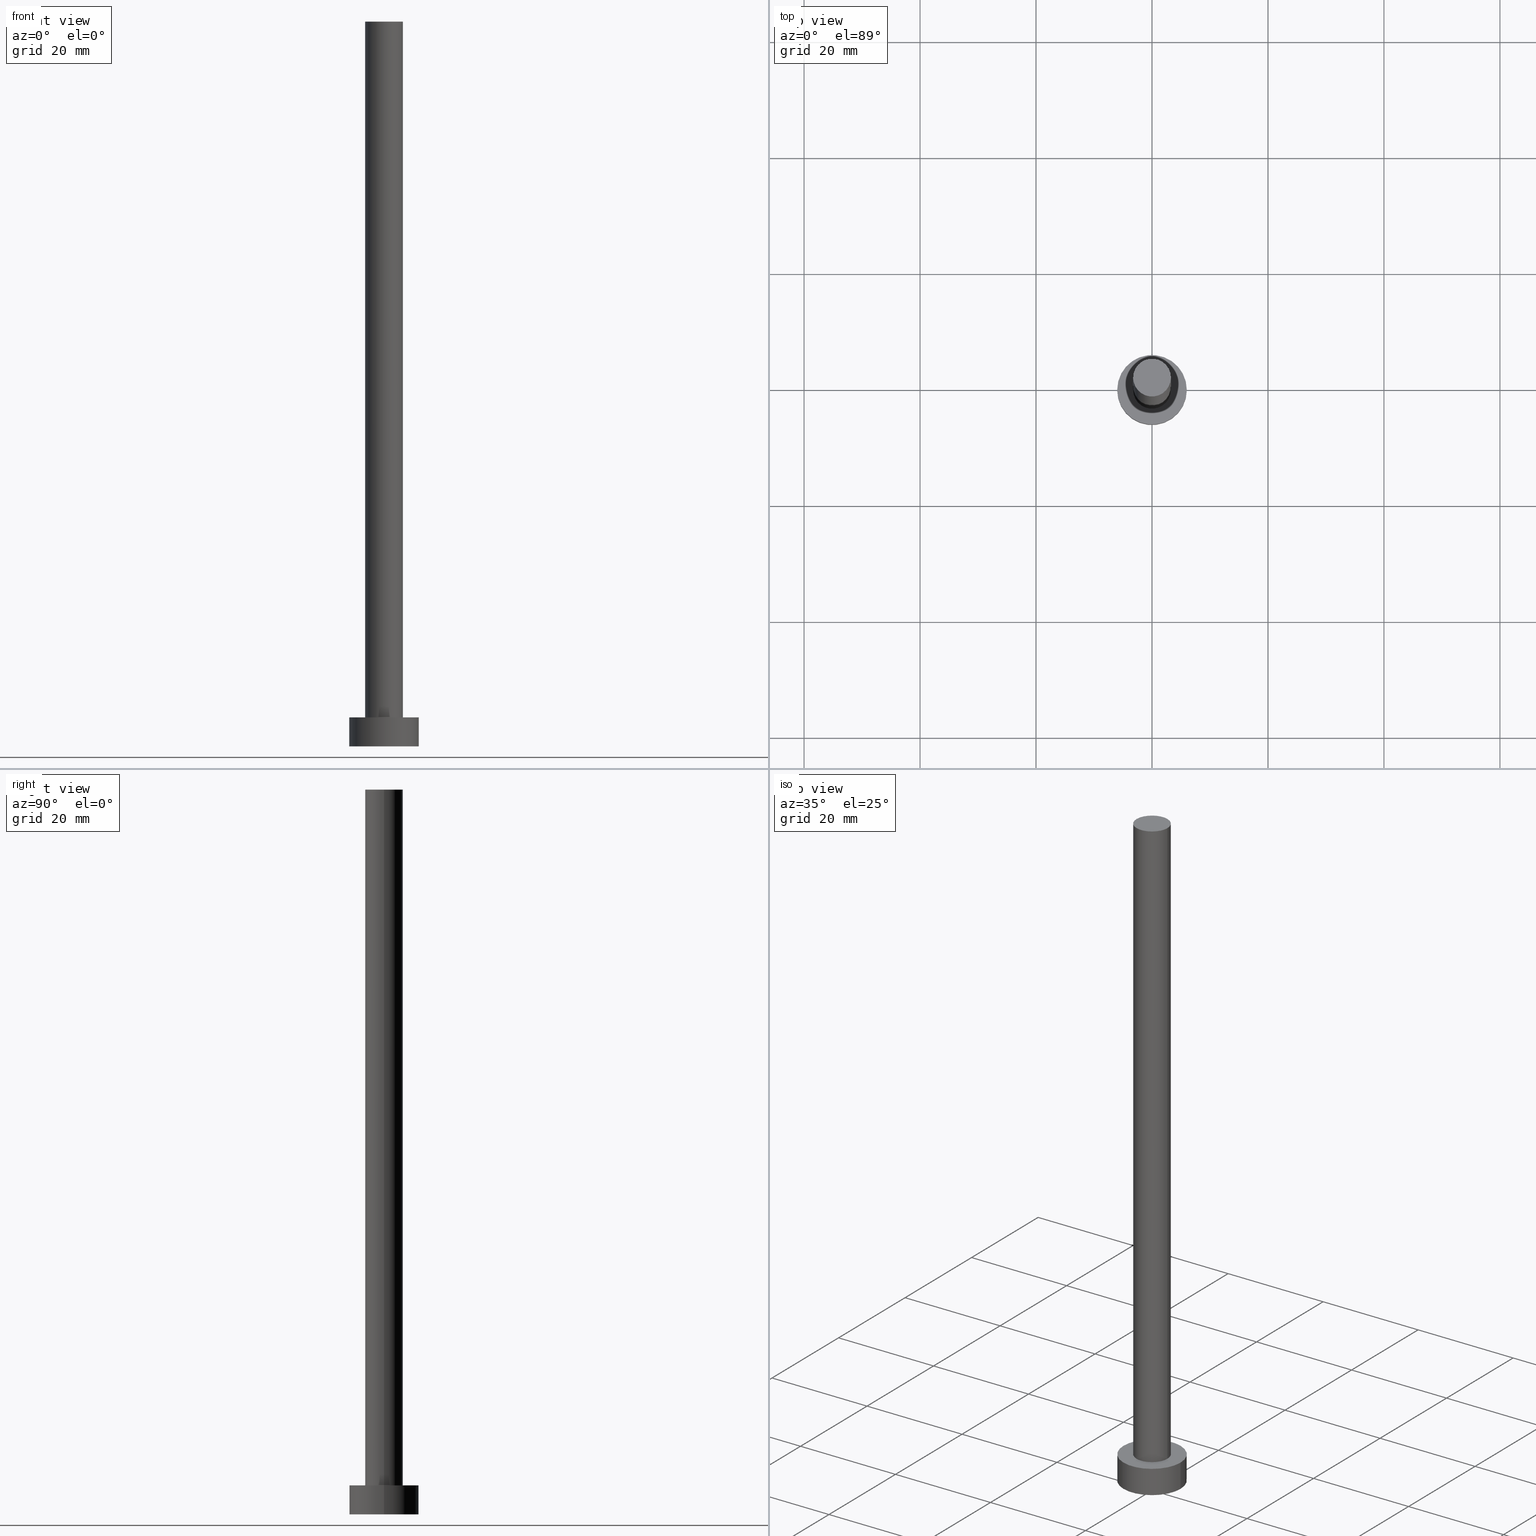
[diagram: canonical four-view strip — front | top / right | iso, engineering-drawing reading convention]
A machine part, canonical four-view strip (front | top / right | iso — engineering-drawing reading convention). The complete STEP part file that produces these views, byte-faithful:
ISO-10303-21;
HEADER;
FILE_DESCRIPTION (( 'STEP AP203' ),
    '1' );
FILE_NAME ('d3a0.STEP',
    '2023-02-13T15:17:46',
    ( '' ),
    ( '' ),
    'SwSTEP 2.0',
    'SolidWorks 2019',
    '' );
FILE_SCHEMA (( 'CONFIG_CONTROL_DESIGN' ));
ENDSEC;

DATA;
#1 = VECTOR ( 'NONE', #198, 1000.000000000000000 ) ;
#2 =( LENGTH_UNIT ( ) NAMED_UNIT ( * ) SI_UNIT ( .MILLI., .METRE. ) );
#3 = DIRECTION ( 'NONE',  ( -1.000000000000000000, 0.000000000000000000, 0.000000000000000000 ) ) ;
#4 = DIRECTION ( 'NONE',  ( -0.000000000000000000, -0.000000000000000000, -1.000000000000000000 ) ) ;
#5 = CARTESIAN_POINT ( 'NONE',  ( 0.000000000000000000, 0.000000000000000000, 5.000000000000000000 ) ) ;
#6 = EDGE_LOOP ( 'NONE', ( #8, #125, #149, #90 ) ) ;
#7 = APPROVAL_DATE_TIME ( #184, #88 ) ;
#8 = ORIENTED_EDGE ( 'NONE', *, *, #59, .F. ) ;
#9 = CARTESIAN_POINT ( 'NONE',  ( 0.000000000000000000, 0.000000000000000000, 5.000000000000000000 ) ) ;
#10 = ORIENTED_EDGE ( 'NONE', *, *, #173, .T. ) ;
#11 = ORIENTED_EDGE ( 'NONE', *, *, #173, .F. ) ;
#12 = AXIS2_PLACEMENT_3D ( 'NONE', #74, #255, #233 ) ;
#13 = EDGE_CURVE ( 'NONE', #145, #68, #168, .T. ) ;
#14 = LOCAL_TIME ( 16, 17, 46.00000000000000000, #171 ) ;
#15 = EDGE_CURVE ( 'NONE', #145, #221, #131, .T. ) ;
#16 = PERSON_AND_ORGANIZATION ( #89, #252 ) ;
#17 = SHAPE_DEFINITION_REPRESENTATION ( #42, #76 ) ;
#18 = DIRECTION ( 'NONE',  ( 1.000000000000000000, 0.000000000000000000, 0.000000000000000000 ) ) ;
#19 = DESIGN_CONTEXT ( 'detailed design', #27, 'design' ) ;
#20 = CC_DESIGN_PERSON_AND_ORGANIZATION_ASSIGNMENT ( #93, #212, ( #152 ) ) ;
#21 = CC_DESIGN_PERSON_AND_ORGANIZATION_ASSIGNMENT ( #49, #66, ( #120 ) ) ;
#22 = AXIS2_PLACEMENT_3D ( 'NONE', #115, #197, #54 ) ;
#23 = CYLINDRICAL_SURFACE ( 'NONE', #105, 6.000000000000000888 ) ;
#24 = CC_DESIGN_SECURITY_CLASSIFICATION ( #139, ( #136 ) ) ;
#25 = ORIENTED_EDGE ( 'NONE', *, *, #191, .F. ) ;
#26 = APPROVAL_PERSON_ORGANIZATION ( #16, #114, #181 ) ;
#27 = APPLICATION_CONTEXT ( 'configuration controlled 3d designs of mechanical parts and assemblies' ) ;
#28 = ORIENTED_EDGE ( 'NONE', *, *, #15, .F. ) ;
#29 = EDGE_LOOP ( 'NONE', ( #165, #151, #132, #185 ) ) ;
#30 = CARTESIAN_POINT ( 'NONE',  ( 0.000000000000000000, 0.000000000000000000, 0.000000000000000000 ) ) ;
#31 = PERSON_AND_ORGANIZATION ( #89, #252 ) ;
#32 = FACE_OUTER_BOUND ( 'NONE', #160, .T. ) ;
#33 = APPROVAL ( #230, 'NEUR�EN�' ) ;
#34 = MANIFOLD_SOLID_BREP ( 'P�idat vysunut�m3', #179 ) ;
#35 = EDGE_LOOP ( 'NONE', ( #63, #81 ) ) ;
#36 = CARTESIAN_POINT ( 'NONE',  ( -3.250000000000000444, 0.000000000000000000, 125.0000000000000000 ) ) ;
#37 = FACE_OUTER_BOUND ( 'NONE', #50, .T. ) ;
#38 = DIRECTION ( 'NONE',  ( 0.000000000000000000, 0.000000000000000000, 1.000000000000000000 ) ) ;
#39 = CC_DESIGN_PERSON_AND_ORGANIZATION_ASSIGNMENT ( #108, #164, ( #136 ) ) ;
#40 = DIRECTION ( 'NONE',  ( -0.000000000000000000, -0.000000000000000000, -1.000000000000000000 ) ) ;
#41 = APPROVAL_PERSON_ORGANIZATION ( #204, #33, #97 ) ;
#42 = PRODUCT_DEFINITION_SHAPE ( 'NONE', 'NONE',  #120 ) ;
#43 = ADVANCED_FACE ( 'NONE', ( #127, #32 ), #226, .T. ) ;
#44 = FACE_OUTER_BOUND ( 'NONE', #6, .T. ) ;
#45 = CARTESIAN_POINT ( 'NONE',  ( 0.000000000000000000, 0.000000000000000000, 125.0000000000000000 ) ) ;
#46 = CARTESIAN_POINT ( 'NONE',  ( 3.250000000000000444, 3.980102097228898231E-16, 125.0000000000000000 ) ) ;
#47 =( NAMED_UNIT ( * ) PLANE_ANGLE_UNIT ( ) SI_UNIT ( $, .RADIAN. ) );
#48 = CALENDAR_DATE ( 2023, 13, 2 ) ;
#49 = PERSON_AND_ORGANIZATION ( #89, #252 ) ;
#50 = EDGE_LOOP ( 'NONE', ( #104, #85 ) ) ;
#51 = ORIENTED_EDGE ( 'NONE', *, *, #178, .F. ) ;
#52 = MECHANICAL_CONTEXT ( 'NONE', #183, 'mechanical' ) ;
#53 = FACE_OUTER_BOUND ( 'NONE', #29, .T. ) ;
#54 = DIRECTION ( 'NONE',  ( -1.000000000000000000, 0.000000000000000000, 0.000000000000000000 ) ) ;
#55 = VECTOR ( 'NONE', #113, 1000.000000000000000 ) ;
#56 = CARTESIAN_POINT ( 'NONE',  ( -3.250000000000000444, 0.000000000000000000, 125.0000000000000000 ) ) ;
#57 = DIRECTION ( 'NONE',  ( 1.000000000000000000, 0.000000000000000000, 0.000000000000000000 ) ) ;
#58 = AXIS2_PLACEMENT_3D ( 'NONE', #253, #61, #237 ) ;
#59 = EDGE_CURVE ( 'NONE', #228, #241, #71, .T. ) ;
#60 = CYLINDRICAL_SURFACE ( 'NONE', #22, 3.250000000000000444 ) ;
#61 = DIRECTION ( 'NONE',  ( 0.000000000000000000, 0.000000000000000000, 1.000000000000000000 ) ) ;
#62 = ADVANCED_FACE ( 'NONE', ( #229 ), #60, .T. ) ;
#63 = ORIENTED_EDGE ( 'NONE', *, *, #191, .T. ) ;
#64 = CARTESIAN_POINT ( 'NONE',  ( 0.000000000000000000, 0.000000000000000000, 5.000000000000000000 ) ) ;
#65 = AXIS2_PLACEMENT_3D ( 'NONE', #95, #155, #222 ) ;
#66 = PERSON_AND_ORGANIZATION_ROLE ( 'creator' ) ;
#67 = VERTEX_POINT ( 'NONE', #193 ) ;
#68 = VERTEX_POINT ( 'NONE', #36 ) ;
#69 = ORIENTED_EDGE ( 'NONE', *, *, #59, .T. ) ;
#70 = ADVANCED_FACE ( 'NONE', ( #37 ), #78, .F. ) ;
#71 = CIRCLE ( 'NONE', #243, 6.000000000000000888 ) ;
#72 = ORIENTED_EDGE ( 'NONE', *, *, #15, .T. ) ;
#73 = ORIENTED_EDGE ( 'NONE', *, *, #157, .T. ) ;
#74 = CARTESIAN_POINT ( 'NONE',  ( 0.000000000000000000, 0.000000000000000000, 5.000000000000000000 ) ) ;
#75 = LINE ( 'NONE', #231, #55 ) ;
#76 = ADVANCED_BREP_SHAPE_REPRESENTATION ( 'd3a0', ( #34, #215 ), #244 ) ;
#77 = DIRECTION ( 'NONE',  ( 0.000000000000000000, 0.000000000000000000, 1.000000000000000000 ) ) ;
#78 = PLANE ( 'NONE',  #133 ) ;
#79 = CC_DESIGN_PERSON_AND_ORGANIZATION_ASSIGNMENT ( #84, #130, ( #136 ) ) ;
#80 = AXIS2_PLACEMENT_3D ( 'NONE', #112, #38, #18 ) ;
#81 = ORIENTED_EDGE ( 'NONE', *, *, #13, .T. ) ;
#82 = DIRECTION ( 'NONE',  ( -1.000000000000000000, 0.000000000000000000, 0.000000000000000000 ) ) ;
#83 = EDGE_CURVE ( 'NONE', #228, #148, #75, .T. ) ;
#84 = PERSON_AND_ORGANIZATION ( #89, #252 ) ;
#85 = ORIENTED_EDGE ( 'NONE', *, *, #239, .F. ) ;
#86 = APPROVAL_PERSON_ORGANIZATION ( #187, #88, #182 ) ;
#87 = DIRECTION ( 'NONE',  ( 0.000000000000000000, 0.000000000000000000, 1.000000000000000000 ) ) ;
#88 = APPROVAL ( #189, 'NEUR�EN�' ) ;
#89 = PERSON ( 'NEUR�EN�', 'NEUR�EN�', 'NEUR�EN�', ('NEUR�EN�'), ('NEUR�EN�'), ('NEUR�EN�') ) ;
#90 = ORIENTED_EDGE ( 'NONE', *, *, #207, .F. ) ;
#91 = CC_DESIGN_APPROVAL ( #88, ( #136 ) ) ;
#92 = DIRECTION ( 'NONE',  ( 0.000000000000000000, 0.000000000000000000, 1.000000000000000000 ) ) ;
#93 = PERSON_AND_ORGANIZATION ( #89, #252 ) ;
#94 = DATE_AND_TIME ( #110, #14 ) ;
#95 = CARTESIAN_POINT ( 'NONE',  ( 0.000000000000000000, 0.000000000000000000, 0.000000000000000000 ) ) ;
#96 = FACE_OUTER_BOUND ( 'NONE', #35, .T. ) ;
#97 = APPROVAL_ROLE ( '' ) ;
#98 = CARTESIAN_POINT ( 'NONE',  ( 0.000000000000000000, 0.000000000000000000, 125.0000000000000000 ) ) ;
#99 = DIRECTION ( 'NONE',  ( 0.000000000000000000, 0.000000000000000000, 1.000000000000000000 ) ) ;
#100 = AXIS2_PLACEMENT_3D ( 'NONE', #118, #99, #219 ) ;
#101 = CARTESIAN_POINT ( 'NONE',  ( 3.250000000000000444, 3.980102097228898231E-16, 125.0000000000000000 ) ) ;
#102 = ADVANCED_FACE ( 'NONE', ( #96 ), #169, .T. ) ;
#103 = CIRCLE ( 'NONE', #250, 6.000000000000000888 ) ;
#104 = ORIENTED_EDGE ( 'NONE', *, *, #224, .F. ) ;
#105 = AXIS2_PLACEMENT_3D ( 'NONE', #5, #4, #82 ) ;
#106 = DIRECTION ( 'NONE',  ( 0.000000000000000000, 0.000000000000000000, 1.000000000000000000 ) ) ;
#107 = LOCAL_TIME ( 16, 17, 46.00000000000000000, #126 ) ;
#108 = PERSON_AND_ORGANIZATION ( #89, #252 ) ;
#109 = ORIENTED_EDGE ( 'NONE', *, *, #166, .T. ) ;
#110 = CALENDAR_DATE ( 2023, 13, 2 ) ;
#111 = AXIS2_PLACEMENT_3D ( 'NONE', #98, #77, #57 ) ;
#112 = CARTESIAN_POINT ( 'NONE',  ( 0.000000000000000000, 0.000000000000000000, 5.000000000000000000 ) ) ;
#113 = DIRECTION ( 'NONE',  ( -0.000000000000000000, -0.000000000000000000, -1.000000000000000000 ) ) ;
#114 = APPROVAL ( #141, 'NEUR�EN�' ) ;
#115 = CARTESIAN_POINT ( 'NONE',  ( 0.000000000000000000, 0.000000000000000000, 125.0000000000000000 ) ) ;
#116 = CARTESIAN_POINT ( 'NONE',  ( -3.250000000000000444, 0.000000000000000000, 5.000000000000000000 ) ) ;
#117 = CARTESIAN_POINT ( 'NONE',  ( 0.000000000000000000, 0.000000000000000000, 0.000000000000000000 ) ) ;
#118 = CARTESIAN_POINT ( 'NONE',  ( 0.000000000000000000, 0.000000000000000000, 0.000000000000000000 ) ) ;
#119 = DIRECTION ( 'NONE',  ( 0.000000000000000000, 0.000000000000000000, 1.000000000000000000 ) ) ;
#120 = PRODUCT_DEFINITION ( 'NEZN�M�', '', #136, #19 ) ;
#121 = AXIS2_PLACEMENT_3D ( 'NONE', #177, #119, #201 ) ;
#122 = CALENDAR_DATE ( 2023, 13, 2 ) ;
#123 = UNCERTAINTY_MEASURE_WITH_UNIT (LENGTH_MEASURE( 1.000000000000000082E-05 ), #2, 'distance_accuracy_value', 'NONE');
#124 = SECURITY_CLASSIFICATION_LEVEL ( 'unclassified' ) ;
#125 = ORIENTED_EDGE ( 'NONE', *, *, #83, .T. ) ;
#126 = COORDINATED_UNIVERSAL_TIME_OFFSET ( 1, 0, .AHEAD. ) ;
#127 = FACE_BOUND ( 'NONE', #167, .T. ) ;
#128 = CALENDAR_DATE ( 2023, 13, 2 ) ;
#129 =( NAMED_UNIT ( * ) SI_UNIT ( $, .STERADIAN. ) SOLID_ANGLE_UNIT ( ) );
#130 = PERSON_AND_ORGANIZATION_ROLE ( 'creator' ) ;
#131 = LINE ( 'NONE', #46, #138 ) ;
#132 = ORIENTED_EDGE ( 'NONE', *, *, #207, .T. ) ;
#133 = AXIS2_PLACEMENT_3D ( 'NONE', #117, #92, #154 ) ;
#134 = CYLINDRICAL_SURFACE ( 'NONE', #12, 6.000000000000000888 ) ;
#135 = CIRCLE ( 'NONE', #121, 3.250000000000000444 ) ;
#136 = PRODUCT_DEFINITION_FORMATION_WITH_SPECIFIED_SOURCE ( 'LIBOVOLN�', '', #152, .NOT_KNOWN. ) ;
#137 = ADVANCED_FACE ( 'NONE', ( #44 ), #23, .T. ) ;
#138 = VECTOR ( 'NONE', #208, 1000.000000000000000 ) ;
#139 = SECURITY_CLASSIFICATION ( '', '', #124 ) ;
#140 = FACE_OUTER_BOUND ( 'NONE', #180, .T. ) ;
#141 = APPROVAL_STATUS ( 'not_yet_approved' ) ;
#142 = ORIENTED_EDGE ( 'NONE', *, *, #13, .F. ) ;
#143 = CARTESIAN_POINT ( 'NONE',  ( 6.000000000000000888, 7.347880794884120722E-16, 5.000000000000000000 ) ) ;
#144 = DATE_AND_TIME ( #242, #232 ) ;
#145 = VERTEX_POINT ( 'NONE', #101 ) ;
#146 = DIRECTION ( 'NONE',  ( 0.000000000000000000, 0.000000000000000000, 1.000000000000000000 ) ) ;
#147 = ADVANCED_FACE ( 'NONE', ( #140 ), #214, .T. ) ;
#148 = VERTEX_POINT ( 'NONE', #158 ) ;
#149 = ORIENTED_EDGE ( 'NONE', *, *, #239, .T. ) ;
#150 = LOCAL_TIME ( 16, 17, 46.00000000000000000, #225 ) ;
#151 = ORIENTED_EDGE ( 'NONE', *, *, #157, .F. ) ;
#152 = PRODUCT ( 'd3a0', 'd3a0', '', ( #52 ) ) ;
#153 = LINE ( 'NONE', #56, #156 ) ;
#154 = DIRECTION ( 'NONE',  ( 1.000000000000000000, 0.000000000000000000, -0.000000000000000000 ) ) ;
#155 = DIRECTION ( 'NONE',  ( 0.000000000000000000, 0.000000000000000000, 1.000000000000000000 ) ) ;
#156 = VECTOR ( 'NONE', #213, 1000.000000000000000 ) ;
#157 = EDGE_CURVE ( 'NONE', #241, #228, #103, .T. ) ;
#158 = CARTESIAN_POINT ( 'NONE',  ( 6.000000000000000888, 7.347880794884120722E-16, 0.000000000000000000 ) ) ;
#159 = COORDINATED_UNIVERSAL_TIME_OFFSET ( 1, 0, .AHEAD. ) ;
#160 = EDGE_LOOP ( 'NONE', ( #73, #69 ) ) ;
#161 = AXIS2_PLACEMENT_3D ( 'NONE', #45, #146, #223 ) ;
#162 = CC_DESIGN_APPROVAL ( #33, ( #139 ) ) ;
#163 = APPLICATION_PROTOCOL_DEFINITION ( 'international standard', 'config_control_design', 1994, #183 ) ;
#164 = PERSON_AND_ORGANIZATION_ROLE ( 'design_supplier' ) ;
#165 = ORIENTED_EDGE ( 'NONE', *, *, #83, .F. ) ;
#166 = EDGE_CURVE ( 'NONE', #190, #221, #135, .T. ) ;
#167 = EDGE_LOOP ( 'NONE', ( #205, #51 ) ) ;
#168 = CIRCLE ( 'NONE', #161, 3.250000000000000444 ) ;
#169 = PLANE ( 'NONE',  #58 ) ;
#170 = ADVANCED_FACE ( 'NONE', ( #53 ), #134, .T. ) ;
#171 = COORDINATED_UNIVERSAL_TIME_OFFSET ( 1, 0, .AHEAD. ) ;
#172 = CARTESIAN_POINT ( 'NONE',  ( 3.250000000000000444, 3.980102097228898231E-16, 5.000000000000000000 ) ) ;
#173 = EDGE_CURVE ( 'NONE', #68, #190, #153, .T. ) ;
#174 = CARTESIAN_POINT ( 'NONE',  ( -6.000000000000000888, 0.000000000000000000, 5.000000000000000000 ) ) ;
#175 = CIRCLE ( 'NONE', #65, 6.000000000000000888 ) ;
#176 = LOCAL_TIME ( 16, 17, 46.00000000000000000, #200 ) ;
#177 = CARTESIAN_POINT ( 'NONE',  ( 0.000000000000000000, 0.000000000000000000, 5.000000000000000000 ) ) ;
#178 = EDGE_CURVE ( 'NONE', #221, #190, #192, .T. ) ;
#179 = CLOSED_SHELL ( 'NONE', ( #62, #137, #170, #43, #70, #147, #102 ) ) ;
#180 = EDGE_LOOP ( 'NONE', ( #28, #25, #10, #109 ) ) ;
#181 = APPROVAL_ROLE ( '' ) ;
#182 = APPROVAL_ROLE ( '' ) ;
#183 = APPLICATION_CONTEXT ( 'configuration controlled 3d designs of mechanical parts and assemblies' ) ;
#184 = DATE_AND_TIME ( #48, #150 ) ;
#185 = ORIENTED_EDGE ( 'NONE', *, *, #224, .T. ) ;
#186 = PRODUCT_RELATED_PRODUCT_CATEGORY ( 'detail', '', ( #152 ) ) ;
#187 = PERSON_AND_ORGANIZATION ( #89, #252 ) ;
#188 = DIRECTION ( 'NONE',  ( 1.000000000000000000, 0.000000000000000000, -0.000000000000000000 ) ) ;
#189 = APPROVAL_STATUS ( 'not_yet_approved' ) ;
#190 = VERTEX_POINT ( 'NONE', #116 ) ;
#191 = EDGE_CURVE ( 'NONE', #68, #145, #218, .T. ) ;
#192 = CIRCLE ( 'NONE', #80, 3.250000000000000444 ) ;
#193 = CARTESIAN_POINT ( 'NONE',  ( -6.000000000000000888, 0.000000000000000000, 0.000000000000000000 ) ) ;
#194 = APPLICATION_PROTOCOL_DEFINITION ( 'international standard', 'config_control_design', 1994, #27 ) ;
#195 = CARTESIAN_POINT ( 'NONE',  ( -6.000000000000000888, 0.000000000000000000, 5.000000000000000000 ) ) ;
#196 = APPROVAL_DATE_TIME ( #94, #33 ) ;
#197 = DIRECTION ( 'NONE',  ( -0.000000000000000000, -0.000000000000000000, -1.000000000000000000 ) ) ;
#198 = DIRECTION ( 'NONE',  ( -0.000000000000000000, -0.000000000000000000, -1.000000000000000000 ) ) ;
#199 = DIRECTION ( 'NONE',  ( 0.000000000000000000, 0.000000000000000000, 1.000000000000000000 ) ) ;
#200 = COORDINATED_UNIVERSAL_TIME_OFFSET ( 1, 0, .AHEAD. ) ;
#201 = DIRECTION ( 'NONE',  ( 1.000000000000000000, 0.000000000000000000, 0.000000000000000000 ) ) ;
#202 = DATE_AND_TIME ( #122, #107 ) ;
#203 = CC_DESIGN_PERSON_AND_ORGANIZATION_ASSIGNMENT ( #31, #249, ( #139 ) ) ;
#204 = PERSON_AND_ORGANIZATION ( #89, #252 ) ;
#205 = ORIENTED_EDGE ( 'NONE', *, *, #166, .F. ) ;
#206 = CARTESIAN_POINT ( 'NONE',  ( 0.000000000000000000, 0.000000000000000000, 5.000000000000000000 ) ) ;
#207 = EDGE_CURVE ( 'NONE', #241, #67, #234, .T. ) ;
#208 = DIRECTION ( 'NONE',  ( -0.000000000000000000, -0.000000000000000000, -1.000000000000000000 ) ) ;
#209 = DIRECTION ( 'NONE',  ( 1.000000000000000000, 0.000000000000000000, 0.000000000000000000 ) ) ;
#210 = ORIENTED_EDGE ( 'NONE', *, *, #178, .T. ) ;
#211 = CIRCLE ( 'NONE', #100, 6.000000000000000888 ) ;
#212 = PERSON_AND_ORGANIZATION_ROLE ( 'design_owner' ) ;
#213 = DIRECTION ( 'NONE',  ( -0.000000000000000000, -0.000000000000000000, -1.000000000000000000 ) ) ;
#214 = CYLINDRICAL_SURFACE ( 'NONE', #235, 3.250000000000000444 ) ;
#215 = AXIS2_PLACEMENT_3D ( 'NONE', #30, #251, #209 ) ;
#216 = DIRECTION ( 'NONE',  ( 1.000000000000000000, 0.000000000000000000, 0.000000000000000000 ) ) ;
#217 = CC_DESIGN_DATE_AND_TIME_ASSIGNMENT ( #202, #247, ( #120 ) ) ;
#218 = CIRCLE ( 'NONE', #111, 3.250000000000000444 ) ;
#219 = DIRECTION ( 'NONE',  ( 1.000000000000000000, 0.000000000000000000, 0.000000000000000000 ) ) ;
#220 = DATE_TIME_ROLE ( 'classification_date' ) ;
#221 = VERTEX_POINT ( 'NONE', #172 ) ;
#222 = DIRECTION ( 'NONE',  ( 1.000000000000000000, 0.000000000000000000, 0.000000000000000000 ) ) ;
#223 = DIRECTION ( 'NONE',  ( 1.000000000000000000, 0.000000000000000000, 0.000000000000000000 ) ) ;
#224 = EDGE_CURVE ( 'NONE', #67, #148, #175, .T. ) ;
#225 = COORDINATED_UNIVERSAL_TIME_OFFSET ( 1, 0, .AHEAD. ) ;
#226 = PLANE ( 'NONE',  #238 ) ;
#227 = DATE_AND_TIME ( #128, #176 ) ;
#228 = VERTEX_POINT ( 'NONE', #143 ) ;
#229 = FACE_OUTER_BOUND ( 'NONE', #245, .T. ) ;
#230 = APPROVAL_STATUS ( 'not_yet_approved' ) ;
#231 = CARTESIAN_POINT ( 'NONE',  ( 6.000000000000000888, 7.347880794884120722E-16, 5.000000000000000000 ) ) ;
#232 = LOCAL_TIME ( 16, 17, 46.00000000000000000, #159 ) ;
#233 = DIRECTION ( 'NONE',  ( -1.000000000000000000, 0.000000000000000000, 0.000000000000000000 ) ) ;
#234 = LINE ( 'NONE', #195, #1 ) ;
#235 = AXIS2_PLACEMENT_3D ( 'NONE', #240, #40, #3 ) ;
#236 = DIRECTION ( 'NONE',  ( 1.000000000000000000, 0.000000000000000000, 0.000000000000000000 ) ) ;
#237 = DIRECTION ( 'NONE',  ( 1.000000000000000000, 0.000000000000000000, -0.000000000000000000 ) ) ;
#238 = AXIS2_PLACEMENT_3D ( 'NONE', #206, #106, #188 ) ;
#239 = EDGE_CURVE ( 'NONE', #148, #67, #211, .T. ) ;
#240 = CARTESIAN_POINT ( 'NONE',  ( 0.000000000000000000, 0.000000000000000000, 125.0000000000000000 ) ) ;
#241 = VERTEX_POINT ( 'NONE', #174 ) ;
#242 = CALENDAR_DATE ( 2023, 13, 2 ) ;
#243 = AXIS2_PLACEMENT_3D ( 'NONE', #9, #87, #236 ) ;
#244 =( GEOMETRIC_REPRESENTATION_CONTEXT ( 3 ) GLOBAL_UNCERTAINTY_ASSIGNED_CONTEXT ( ( #123 ) ) GLOBAL_UNIT_ASSIGNED_CONTEXT ( ( #2, #47, #129 ) ) REPRESENTATION_CONTEXT ( 'NONE', 'WORKASPACE' ) );
#245 = EDGE_LOOP ( 'NONE', ( #142, #72, #210, #11 ) ) ;
#246 = CC_DESIGN_APPROVAL ( #114, ( #120 ) ) ;
#247 = DATE_TIME_ROLE ( 'creation_date' ) ;
#248 = APPROVAL_DATE_TIME ( #227, #114 ) ;
#249 = PERSON_AND_ORGANIZATION_ROLE ( 'classification_officer' ) ;
#250 = AXIS2_PLACEMENT_3D ( 'NONE', #64, #199, #216 ) ;
#251 = DIRECTION ( 'NONE',  ( 0.000000000000000000, 0.000000000000000000, 1.000000000000000000 ) ) ;
#252 = ORGANIZATION ( 'NEUR�EN�', 'NEUR�EN�', '' ) ;
#253 = CARTESIAN_POINT ( 'NONE',  ( 0.000000000000000000, 0.000000000000000000, 125.0000000000000000 ) ) ;
#254 = CC_DESIGN_DATE_AND_TIME_ASSIGNMENT ( #144, #220, ( #139 ) ) ;
#255 = DIRECTION ( 'NONE',  ( -0.000000000000000000, -0.000000000000000000, -1.000000000000000000 ) ) ;
ENDSEC;
END-ISO-10303-21;
